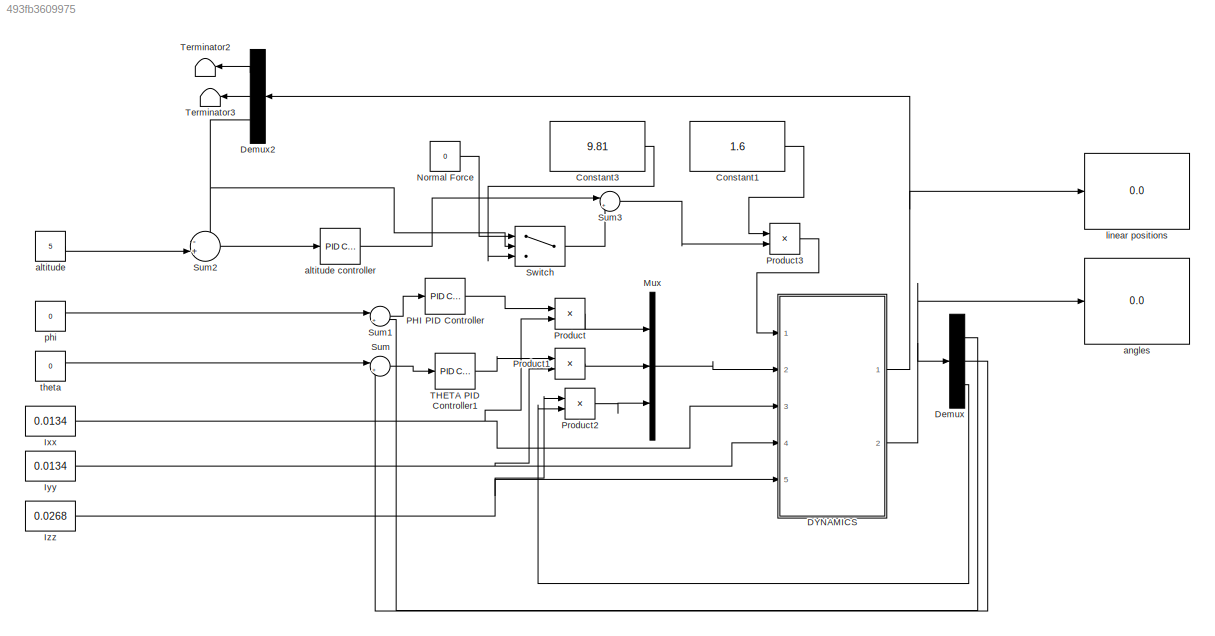
MODEL slx_493fb3609975
KIND model
CONFIG AbsTol = auto
CONFIG EnableMultiTasking = off
CONFIG FixedStep = auto
CONFIG MaxStep = auto
CONFIG MinStep = auto
CONFIG RelTol = 1e-3
CONFIG SampleTimeConstraint = Unconstrained
CONFIG Solver = VariableStepAuto
CONFIG SolverName = VariableStepAuto
CONFIG StartTime = 0.0
CONFIG StopTime = inf
BLOCK [Constant] Constant1
  Value = 1.6
BLOCK [Constant] Constant3
  Value = 9.81
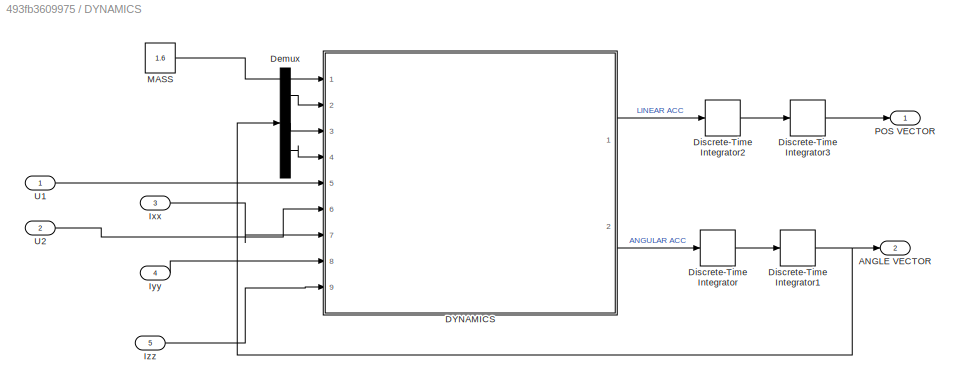
BLOCK [SubSystem] DYNAMICS 
  Ports = [5, 2]
  RequestExecContextInheritance = off
BLOCK [Outport] DYNAMICS /ANGLE VECTOR 
  IconDisplay = Port number
  Port = 2
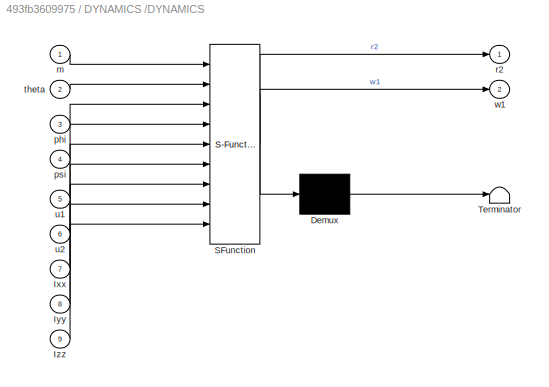
BLOCK [SubSystem] DYNAMICS /DYNAMICS 
  ErrorFcn = Stateflow.Translate.translate
  PermitHierarchicalResolution = ExplicitOnly
  Ports = [9, 2]
  RequestExecContextInheritance = off
  SFBlockType = MATLAB Function
  TreatAsAtomicUnit = on
BLOCK [Demux] DYNAMICS /DYNAMICS / Demux 
  Outputs = 1
  Ports = [1, 1]
BLOCK [S-Function] DYNAMICS /DYNAMICS / SFunction 
  EnableBusSupport = on
  FunctionName = sf_sfun
  PortCounts = [9 3]
  Ports = [9, 3]
  SFcnIsStateOwnerBlock = off
  SFunctionDeploymentMode = off
  Tag = Stateflow S-Function linear_model_Quadcopter_02_09_2019 2
BLOCK [Terminator] DYNAMICS /DYNAMICS / Terminator 
BLOCK [Inport] DYNAMICS /DYNAMICS /Ixx
  IconDisplay = Port number
  Port = 7
BLOCK [Inport] DYNAMICS /DYNAMICS /Iyy
  IconDisplay = Port number
  Port = 8
BLOCK [Inport] DYNAMICS /DYNAMICS /Izz
  IconDisplay = Port number
  Port = 9
BLOCK [Inport] DYNAMICS /DYNAMICS /m
  IconDisplay = Port number
BLOCK [Inport] DYNAMICS /DYNAMICS /phi
  IconDisplay = Port number
  Port = 3
BLOCK [Inport] DYNAMICS /DYNAMICS /psi
  IconDisplay = Port number
  Port = 4
BLOCK [Outport] DYNAMICS /DYNAMICS /r2
  IconDisplay = Port number
BLOCK [Inport] DYNAMICS /DYNAMICS /theta
  IconDisplay = Port number
  Port = 2
BLOCK [Inport] DYNAMICS /DYNAMICS /u1
  IconDisplay = Port number
  Port = 5
BLOCK [Inport] DYNAMICS /DYNAMICS /u2
  IconDisplay = Port number
  Port = 6
BLOCK [Outport] DYNAMICS /DYNAMICS /w1
  IconDisplay = Port number
  Port = 2
BLOCK [Demux] DYNAMICS /Demux
  DisplayOption = bar
  Outputs = 3
  Ports = [1, 3]
BLOCK [DiscreteIntegrator] DYNAMICS /Discrete-Time Integrator
  ICPrevOutput = DiscIntNeverNeededParam
  ICPrevScaledInput = DiscIntNeverNeededParam
  InitialConditionSetting = Auto
  Ports = [1, 1]
  SampleTime = -1
BLOCK [DiscreteIntegrator] DYNAMICS /Discrete-Time Integrator1
  ICPrevOutput = DiscIntNeverNeededParam
  ICPrevScaledInput = DiscIntNeverNeededParam
  InitialConditionSetting = Auto
  Ports = [1, 1]
  SampleTime = -1
BLOCK [DiscreteIntegrator] DYNAMICS /Discrete-Time Integrator2
  ICPrevOutput = DiscIntNeverNeededParam
  ICPrevScaledInput = DiscIntNeverNeededParam
  InitialConditionSetting = Auto
  Ports = [1, 1]
  SampleTime = -1
BLOCK [DiscreteIntegrator] DYNAMICS /Discrete-Time Integrator3
  ICPrevOutput = DiscIntNeverNeededParam
  ICPrevScaledInput = DiscIntNeverNeededParam
  InitialConditionSetting = Auto
  Ports = [1, 1]
  SampleTime = -1
BLOCK [Inport] DYNAMICS /Ixx
  IconDisplay = Port number
  Port = 3
BLOCK [Inport] DYNAMICS /Iyy
  IconDisplay = Port number
  Port = 4
BLOCK [Inport] DYNAMICS /Izz
  IconDisplay = Port number
  Port = 5
BLOCK [Constant] DYNAMICS /MASS 
  Value = 1.6
BLOCK [Outport] DYNAMICS /POS VECTOR
  IconDisplay = Port number
BLOCK [Inport] DYNAMICS /U1
  IconDisplay = Port number
BLOCK [Inport] DYNAMICS /U2
  IconDisplay = Port number
  Port = 2
BLOCK [Demux] Demux
  DisplayOption = bar
  Outputs = 3
  Ports = [1, 3]
BLOCK [Demux] Demux2
  DisplayOption = bar
  Outputs = 3
  Ports = [1, 3]
BLOCK [Constant] Ixx
  Value = 0.0134
BLOCK [Constant] Iyy
  Value = 0.0134
BLOCK [Constant] Izz
  Value = 0.0268
BLOCK [Mux] Mux
  DisplayOption = bar
  Inputs = 3
  Ports = [3, 1]
BLOCK [Constant] Normal Force 
  Value = 0
BLOCK [Reference] PHI PID Controller  REF=simulink/Continuous/PID Controller
  Ports = [1, 1]
  SourceBlock = simulink/Continuous/PID Controller
  SourceProductBaseCode = SL
  SourceProductName = Simulink
  SourceType = PID 1dof
BLOCK [Product] Product
  InputSameDT = off
  OutDataTypeStr = Inherit: Inherit via internal rule
  Ports = [2, 1]
  RndMeth = Floor
  SaturateOnIntegerOverflow = off
BLOCK [Product] Product1
  InputSameDT = off
  OutDataTypeStr = Inherit: Inherit via internal rule
  Ports = [2, 1]
  RndMeth = Floor
  SaturateOnIntegerOverflow = off
BLOCK [Product] Product2
  InputSameDT = off
  OutDataTypeStr = Inherit: Inherit via internal rule
  Ports = [2, 1]
  RndMeth = Floor
  SaturateOnIntegerOverflow = off
BLOCK [Product] Product3
  InputSameDT = off
  OutDataTypeStr = Inherit: Inherit via internal rule
  Ports = [2, 1]
  RndMeth = Floor
  SaturateOnIntegerOverflow = off
BLOCK [Sum] Sum
  IconShape = round
  InputSameDT = off
  Inputs = |+-
  OutDataTypeStr = Inherit: Inherit via internal rule
  Ports = [2, 1]
  SaturateOnIntegerOverflow = off
BLOCK [Sum] Sum1
  IconShape = round
  InputSameDT = off
  Inputs = |+-
  OutDataTypeStr = Inherit: Inherit via internal rule
  Ports = [2, 1]
  SaturateOnIntegerOverflow = off
BLOCK [Sum] Sum2
  IconShape = round
  InputSameDT = off
  Inputs = -+|
  OutDataTypeStr = Inherit: Inherit via internal rule
  Ports = [2, 1]
  SaturateOnIntegerOverflow = off
BLOCK [Sum] Sum3
  IconShape = round
  InputSameDT = off
  Inputs = |+-
  OutDataTypeStr = Inherit: Inherit via internal rule
  Ports = [2, 1]
  SaturateOnIntegerOverflow = off
BLOCK [Switch] Switch
  Criteria = u2 ~= 0
  InputSameDT = off
  SaturateOnIntegerOverflow = off
BLOCK [Reference] THETA PID Controller1  REF=simulink/Continuous/PID Controller
  Ports = [1, 1]
  SourceBlock = simulink/Continuous/PID Controller
  SourceProductBaseCode = SL
  SourceProductName = Simulink
  SourceType = PID 1dof
BLOCK [Terminator] Terminator2
BLOCK [Terminator] Terminator3
BLOCK [Constant] altitude 
  Value = 5
BLOCK [Reference] altitude controller  REF=simulink/Continuous/PID Controller
  Ports = [1, 1]
  SourceBlock = simulink/Continuous/PID Controller
  SourceProductBaseCode = SL
  SourceProductName = Simulink
  SourceType = PID 1dof
BLOCK [Display] angles 
  Decimation = 1
  Ports = [1]
BLOCK [Display] linear positions 
  Decimation = 1
  Ports = [1]
BLOCK [Constant] phi
  Value = 0
BLOCK [Constant] theta
  Value = 0
LINE Constant1:1 -> Product3:1
LINE Constant3:1 -> Switch:3
LINE DYNAMICS /DYNAMICS :1 -> DYNAMICS /Discrete-Time Integrator2:1
LINE DYNAMICS /DYNAMICS :2 -> DYNAMICS /Discrete-Time Integrator:1
LINE DYNAMICS /Demux:1 -> DYNAMICS /DYNAMICS :2
LINE DYNAMICS /Demux:2 -> DYNAMICS /DYNAMICS :3
LINE DYNAMICS /Demux:3 -> DYNAMICS /DYNAMICS :4
NET DYNAMICS /Discrete-Time Integrator1:1 -> DYNAMICS /ANGLE VECTOR :1, DYNAMICS /Demux:1
LINE DYNAMICS /Discrete-Time Integrator2:1 -> DYNAMICS /Discrete-Time Integrator3:1
LINE DYNAMICS /Discrete-Time Integrator3:1 -> DYNAMICS /POS VECTOR:1
LINE DYNAMICS /Discrete-Time Integrator:1 -> DYNAMICS /Discrete-Time Integrator1:1
LINE DYNAMICS /Ixx:1 -> DYNAMICS /DYNAMICS :7
LINE DYNAMICS /Iyy:1 -> DYNAMICS /DYNAMICS :8
LINE DYNAMICS /Izz:1 -> DYNAMICS /DYNAMICS :9
LINE DYNAMICS /MASS :1 -> DYNAMICS /DYNAMICS :1
LINE DYNAMICS /U1:1 -> DYNAMICS /DYNAMICS :5
LINE DYNAMICS /U2:1 -> DYNAMICS /DYNAMICS :6
NET DYNAMICS :1 -> Demux2:1, linear positions :1
NET DYNAMICS :2 -> Demux:1, angles :1
LINE Demux2:1 -> Terminator2:1
LINE Demux2:2 -> Terminator3:1
NET Demux2:3 -> Sum2:1, Switch:2
LINE Demux:1 -> Sum1:2
LINE Demux:2 -> Sum:2
LINE Demux:3 -> Product2:2
NET Ixx:1 -> DYNAMICS :3, Product:2
NET Iyy:1 -> DYNAMICS :4, Product1:2
NET Izz:1 -> DYNAMICS :5, Product2:1
LINE Mux:1 -> DYNAMICS :2
LINE Normal Force :1 -> Switch:1
LINE PHI PID Controller:1 -> Product:1
LINE Product1:1 -> Mux:2
LINE Product2:1 -> Mux:3
LINE Product3:1 -> DYNAMICS :1
LINE Product:1 -> Mux:1
LINE Sum1:1 -> PHI PID Controller:1
LINE Sum2:1 -> altitude controller:1
LINE Sum3:1 -> Product3:2
LINE Sum:1 -> THETA PID Controller1:1
LINE Switch:1 -> Sum3:2
LINE THETA PID Controller1:1 -> Product1:1
LINE altitude :1 -> Sum2:2
LINE altitude controller:1 -> Sum3:1
LINE phi:1 -> Sum1:1
LINE theta:1 -> Sum:1
note: NET lines group one-source signal fan-out (src -> all destinations, sorted); 1:1 wires keep LINE
CHART DYNAMICS
/DYNAMICS
 states=1 transitions=1
  STATE_LABEL 'eML_blk_kernel()'
  STATE_LABEL 'SCRIPT:\nfunction [r2 ,w1] = fcn(m,theta,phi,psi,u1,u2,Ixx,Iyy,Izz)\n    I = [Ixx 0 0;\n        0 Iyy 0 ;\n        0 0 Izz];\n    \n    G = [0;0;-9.81];\n    r2 = (1/m).*[cos(psi), -sin(psi) ,(phi*sin(psi)+theta*cos(psi));sin(psi), cos(psi), (-phi*cos(psi)+theta*sin(psi)) ;-theta ,phi ,1]  * [0;0;u1]  +G;\n\n    \n    w1 = inv(I)*u2;\n    \n    \n    \n    \n    \nend\n\n'
